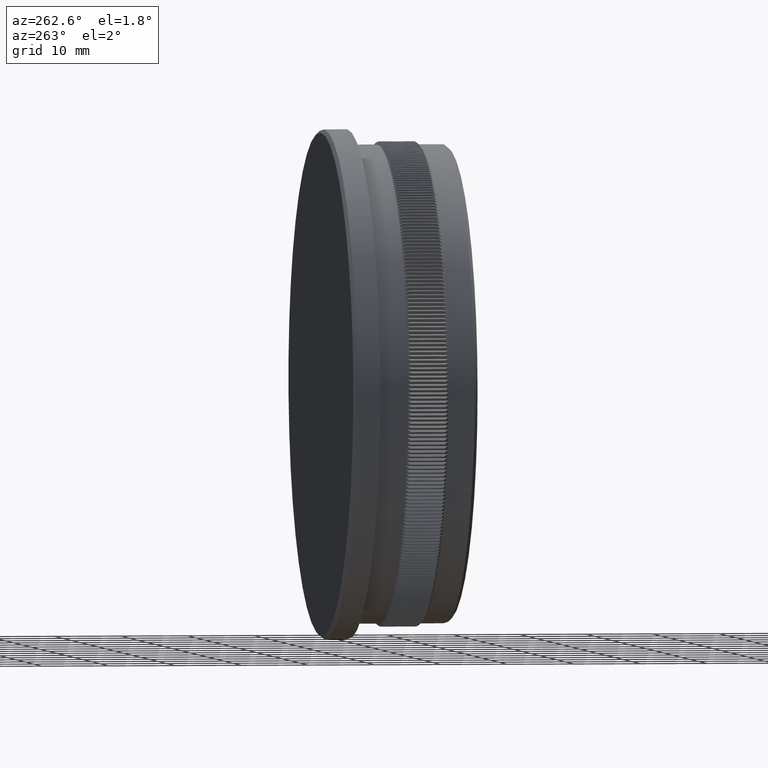
[diagram: clean part render]
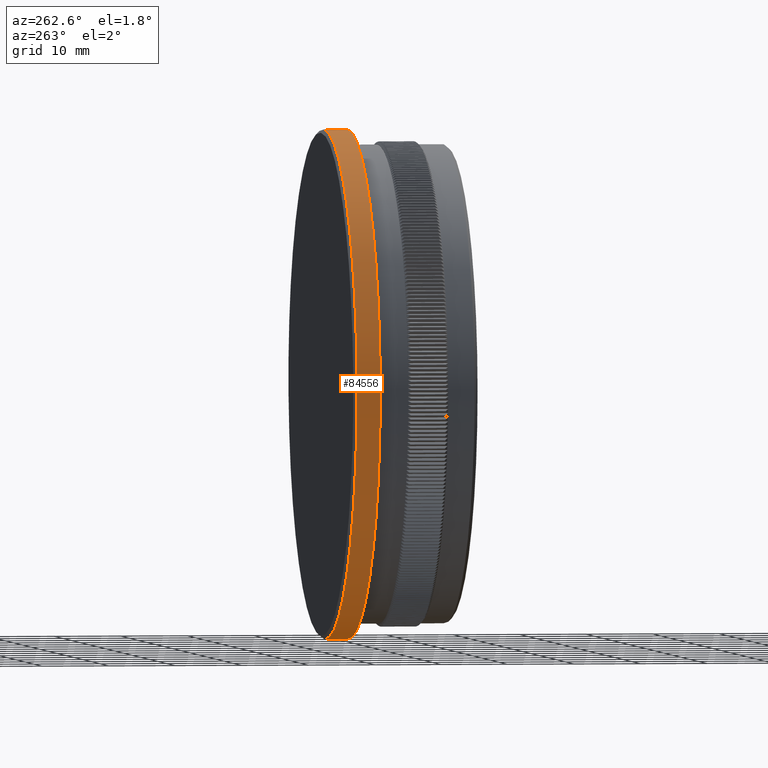
[diagram: same view with one face highlighted and labeled with its STEP entity id]
A machine part, auxiliary view. The second image highlights one B-rep face of the part: STEP entity #84556.
In plain terms, the highlighted cylindrical surface (partial cylindrical patch) has radius 38.05 mm, axis along (-0, 1, -0).
Its self-contained STEP definition (entity closure, byte-faithful):
#3176 = DIRECTION ( 'NONE',  ( -0.0000000000000000000, 1.000000000000000000, -0.0000000000000000000 ) ) ;
#6239 = EDGE_CURVE ( 'NONE', #14967, #30817, #81805, .T. ) ;
#6328 = CARTESIAN_POINT ( 'NONE',  ( 4.659781070755679000E-015, 15.00000000000000000, -38.04999999999999700 ) ) ;
#6840 = LINE ( 'NONE', #38605, #50026 ) ;
#7896 = ORIENTED_EDGE ( 'NONE', *, *, #6239, .F. ) ;
#9206 = AXIS2_PLACEMENT_3D ( 'NONE', #73667, #72764, #25447 ) ;
#9459 = EDGE_CURVE ( 'NONE', #15503, #38796, #6840, .T. ) ;
#14967 = VERTEX_POINT ( 'NONE', #6328 ) ;
#15030 = ORIENTED_EDGE ( 'NONE', *, *, #9459, .T. ) ;
#15503 = VERTEX_POINT ( 'NONE', #31934 ) ;
#16093 = CARTESIAN_POINT ( 'NONE',  ( 4.659781070755679000E-015, 18.99999999999999600, -38.04999999999999700 ) ) ;
#25447 = DIRECTION ( 'NONE',  ( 0.0000000000000000000, 0.0000000000000000000, -1.000000000000000000 ) ) ;
#25540 = AXIS2_PLACEMENT_3D ( 'NONE', #88727, #53389, #81766 ) ;
#30817 = VERTEX_POINT ( 'NONE', #76809 ) ;
#31419 = EDGE_CURVE ( 'NONE', #38796, #30817, #72973, .T. ) ;
#31934 = CARTESIAN_POINT ( 'NONE',  ( 0.0000000000000000000, 15.00000000000000000, 38.04999999999999700 ) ) ;
#36386 = ORIENTED_EDGE ( 'NONE', *, *, #76533, .T. ) ;
#38605 = CARTESIAN_POINT ( 'NONE',  ( 0.0000000000000000000, 18.99999999999999600, 38.04999999999999700 ) ) ;
#38620 = VECTOR ( 'NONE', #57635, 1000.000000000000000 ) ;
#38796 = VERTEX_POINT ( 'NONE', #51147 ) ;
#43914 = CARTESIAN_POINT ( 'NONE',  ( 0.0000000000000000000, 15.00000000000000000, 0.0000000000000000000 ) ) ;
#50026 = VECTOR ( 'NONE', #73268, 1000.000000000000000 ) ;
#51147 = CARTESIAN_POINT ( 'NONE',  ( 0.0000000000000000000, 18.50000000000000400, 38.04999999999999700 ) ) ;
#53389 = DIRECTION ( 'NONE',  ( -0.0000000000000000000, 1.000000000000000000, -0.0000000000000000000 ) ) ;
#56583 = AXIS2_PLACEMENT_3D ( 'NONE', #43914, #3176, #64400 ) ;
#57635 = DIRECTION ( 'NONE',  ( -0.0000000000000000000, 1.000000000000000000, -0.0000000000000000000 ) ) ;
#57844 = EDGE_LOOP ( 'NONE', ( #7896, #36386, #15030, #89420 ) ) ;
#64400 = DIRECTION ( 'NONE',  ( 0.0000000000000000000, 0.0000000000000000000, 1.000000000000000000 ) ) ;
#72764 = DIRECTION ( 'NONE',  ( 0.0000000000000000000, -1.000000000000000000, 0.0000000000000000000 ) ) ;
#72973 = CIRCLE ( 'NONE', #9206, 38.04999999999999700 ) ;
#73268 = DIRECTION ( 'NONE',  ( -0.0000000000000000000, 1.000000000000000000, -0.0000000000000000000 ) ) ;
#73667 = CARTESIAN_POINT ( 'NONE',  ( 0.0000000000000000000, 18.50000000000000400, 0.0000000000000000000 ) ) ;
#76533 = EDGE_CURVE ( 'NONE', #14967, #15503, #88416, .T. ) ;
#76809 = CARTESIAN_POINT ( 'NONE',  ( 4.659781070755679000E-015, 18.50000000000000400, -38.04999999999999700 ) ) ;
#76964 = CYLINDRICAL_SURFACE ( 'NONE', #25540, 38.04999999999999700 ) ;
#81766 = DIRECTION ( 'NONE',  ( 0.0000000000000000000, 0.0000000000000000000, 1.000000000000000000 ) ) ;
#81805 = LINE ( 'NONE', #16093, #38620 ) ;
#84556 = ADVANCED_FACE ( 'NONE', ( #85664 ), #76964, .T. ) ;
#85664 = FACE_OUTER_BOUND ( 'NONE', #57844, .T. ) ;
#88416 = CIRCLE ( 'NONE', #56583, 38.04999999999999700 ) ;
#88727 = CARTESIAN_POINT ( 'NONE',  ( 0.0000000000000000000, 18.99999999999999600, 0.0000000000000000000 ) ) ;
#89420 = ORIENTED_EDGE ( 'NONE', *, *, #31419, .T. ) ;